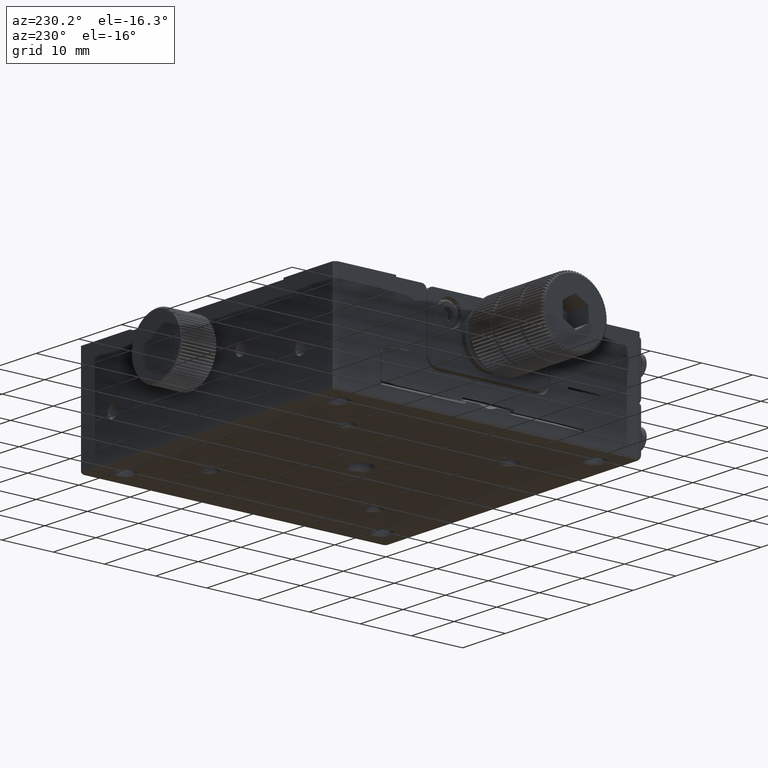
[diagram: clean part render]
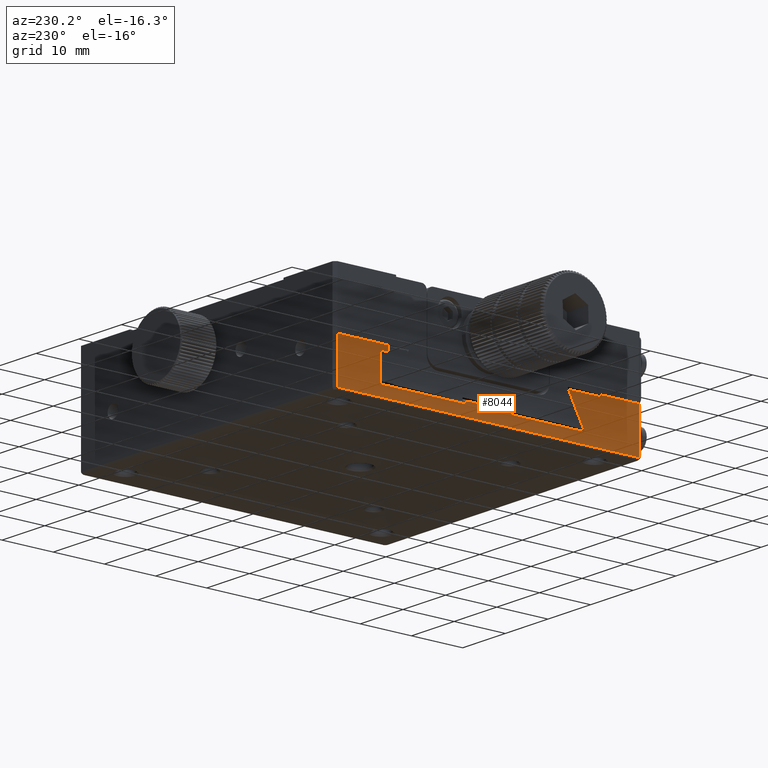
[diagram: same view with one face highlighted and labeled with its STEP entity id]
A machine part, auxiliary view. The second image highlights one B-rep face of the part: STEP entity #8044.
In plain terms, the highlighted planar face has unit normal (-1, 0, -0).
Its self-contained STEP definition (entity closure, byte-faithful):
#1287 = CARTESIAN_POINT ( 'NONE',  ( -30.00000000000004974, -29.99999999999998224, 68.41118330159217464 ) ) ;
#3218 = CARTESIAN_POINT ( 'NONE',  ( -30.00000000000004619, -18.84863156129987161, 62.35896086907427360 ) ) ;
#3400 = VERTEX_POINT ( 'NONE', #56900 ) ;
#3756 = AXIS2_PLACEMENT_3D ( 'NONE', #55884, #68641, #62620 ) ;
#3880 = CARTESIAN_POINT ( 'NONE',  ( -30.00000000000004619, -29.49999999999997868, 60.29999999999999716 ) ) ;
#4067 = EDGE_CURVE ( 'NONE', #25212, #7464, #9863, .T. ) ;
#4610 = B_SPLINE_CURVE_WITH_KNOTS ( 'NONE', 3,
 ( #58953, #14101, #47676, #70635, #70997, #24297, #47289, #7658, #42031, #64974 ),
 .UNSPECIFIED., .F., .F.,
 ( 4, 2, 2, 2, 4 ),
 ( -0.001803855641080095952, -0.0009018185509481879822, 2.185391837199873732E-07, 0.0009022556293156278485, 0.001804292719447535926 ),
 .UNSPECIFIED. ) ;
#4742 = CARTESIAN_POINT ( 'NONE',  ( -30.00000000000005329, -4.250000000000001776, 62.85795495142279776 ) ) ;
#4821 = DIRECTION ( 'NONE',  ( 0.000000000000000000, 1.000000000000000000, 0.000000000000000000 ) ) ;
#4844 = VERTEX_POINT ( 'NONE', #34919 ) ;
#5277 = CARTESIAN_POINT ( 'NONE',  ( -30.00000000000004263, 29.50000000000002842, 60.29999999999999716 ) ) ;
#5828 = VECTOR ( 'NONE', #47686, 1000.000000000000000 ) ;
#6255 = EDGE_CURVE ( 'NONE', #14005, #14031, #13396, .T. ) ;
#6266 = ORIENTED_EDGE ( 'NONE', *, *, #72024, .T. ) ;
#7018 = B_SPLINE_CURVE_WITH_KNOTS ( 'NONE', 3,
 ( #10415, #20258, #55665, #3218 ),
 .UNSPECIFIED., .F., .F.,
 ( 4, 4 ),
 ( 0.000000000000000000, 0.006834671148344017254 ),
 .UNSPECIFIED. ) ;
#7464 = VERTEX_POINT ( 'NONE', #28369 ) ;
#7658 = CARTESIAN_POINT ( 'NONE',  ( -30.00000000000002842, 1.188404621374754777, 62.60175307753633689 ) ) ;
#8044 = ADVANCED_FACE ( 'NONE', ( #9859 ), #32880, .T. ) ;
#8283 = VECTOR ( 'NONE', #39150, 1000.000000000000000 ) ;
#8309 = VERTEX_POINT ( 'NONE', #60295 ) ;
#8348 = LINE ( 'NONE', #31019, #44410 ) ;
#9679 = CARTESIAN_POINT ( 'NONE',  ( -30.00000000000004263, -4.617457868454971859, 62.35896086907426650 ) ) ;
#9815 = CARTESIAN_POINT ( 'NONE',  ( -30.00000000000006040, -29.49999999999997868, 84.99999999999998579 ) ) ;
#9859 = FACE_OUTER_BOUND ( 'NONE', #50284, .T. ) ;
#9863 = LINE ( 'NONE', #32887, #16503 ) ;
#10415 = CARTESIAN_POINT ( 'NONE',  ( -30.00000000000004974, -15.67320508075690455, 68.41118330159216043 ) ) ;
#10650 = VERTEX_POINT ( 'NONE', #5277 ) ;
#11246 = VERTEX_POINT ( 'NONE', #3880 ) ;
#11913 = CARTESIAN_POINT ( 'NONE',  ( -30.00000000000004974, 19.63334295424238363, 67.71905611070918951 ) ) ;
#12134 = CARTESIAN_POINT ( 'NONE',  ( -30.00000000000005329, 4.250000000000000000, 62.85795495142279776 ) ) ;
#12461 = EDGE_CURVE ( 'NONE', #56711, #45991, #42487, .T. ) ;
#12991 = LINE ( 'NONE', #17910, #5828 ) ;
#13106 = EDGE_CURVE ( 'NONE', #7464, #10650, #36104, .T. ) ;
#13396 = LINE ( 'NONE', #1287, #40000 ) ;
#13441 = EDGE_CURVE ( 'NONE', #8309, #34779, #12991, .T. ) ;
#14005 = VERTEX_POINT ( 'NONE', #65076 ) ;
#14031 = VERTEX_POINT ( 'NONE', #48141 ) ;
#14101 = CARTESIAN_POINT ( 'NONE',  ( -30.00000000000005684, -1.474826094125662124, 62.71373778912117558 ) ) ;
#14166 = EDGE_CURVE ( 'NONE', #14031, #50155, #7018, .T. ) ;
#14199 = ORIENTED_EDGE ( 'NONE', *, *, #42222, .T. ) ;
#14856 = DIRECTION ( 'NONE',  ( 0.000000000000000000, 1.000000000000000000, 0.000000000000000000 ) ) ;
#15038 = CARTESIAN_POINT ( 'NONE',  ( -30.00000000000004619, 19.49999999999999645, 68.73863542962540407 ) ) ;
#15248 = LINE ( 'NONE', #21670, #47205 ) ;
#15671 = CARTESIAN_POINT ( 'NONE',  ( -30.00000000000004619, -29.99999999999998224, 60.29999999999999716 ) ) ;
#15735 = EDGE_CURVE ( 'NONE', #60796, #3400, #15248, .T. ) ;
#15787 = CARTESIAN_POINT ( 'NONE',  ( -30.00000000000004974, -21.99999999999997513, -75.00000000484634199 ) ) ;
#16231 = CARTESIAN_POINT ( 'NONE',  ( -30.00000000000004974, -21.99999999999997868, 68.73863542962538986 ) ) ;
#16503 = VECTOR ( 'NONE', #62623, 1000.000000000000000 ) ;
#17177 = CARTESIAN_POINT ( 'NONE',  ( -30.00000000000005329, -1.743559577416249340, 62.85795495142279776 ) ) ;
#17910 = CARTESIAN_POINT ( 'NONE',  ( -30.00000000000008527, 30.00000000000002842, 67.64613810645261083 ) ) ;
#18136 = CARTESIAN_POINT ( 'NONE',  ( -30.00000000000004619, 19.49999999999999645, -6.765421556309545144E-14 ) ) ;
#18786 = CARTESIAN_POINT ( 'NONE',  ( -30.00000000000004974, -29.49999999999997868, 68.73863542962538986 ) ) ;
#19727 = DIRECTION ( 'NONE',  ( 0.000000000000000000, 1.000000000000000000, 0.000000000000000000 ) ) ;
#20258 = CARTESIAN_POINT ( 'NONE',  ( -30.00000000000004974, -16.73811358713173192, 66.39715104031704129 ) ) ;
#20650 = CARTESIAN_POINT ( 'NONE',  ( -30.00000000000003908, -4.747493718553307041, 62.35896086907427360 ) ) ;
#20762 = CARTESIAN_POINT ( 'NONE',  ( -30.00000000000005329, -4.250000000000001776, 62.85795495142279776 ) ) ;
#21110 = LINE ( 'NONE', #15787, #28328 ) ;
#21320 = VECTOR ( 'NONE', #55576, 1000.000000000000000 ) ;
#21523 = EDGE_CURVE ( 'NONE', #27926, #32047, #33172, .T. ) ;
#21670 = CARTESIAN_POINT ( 'NONE',  ( -30.00000000000004619, -29.99999999999998224, 62.85795495142279776 ) ) ;
#22492 = LINE ( 'NONE', #15671, #48621 ) ;
#24018 = VERTEX_POINT ( 'NONE', #17177 ) ;
#24297 = CARTESIAN_POINT ( 'NONE',  ( -30.00000000000002842, 0.3053818348310335384, 62.41446022413273909 ) ) ;
#24594 = CARTESIAN_POINT ( 'NONE',  ( -30.00000000000004619, -18.84863156129987161, 62.35896086907427360 ) ) ;
#24777 = LINE ( 'NONE', #36080, #27457 ) ;
#24974 = ORIENTED_EDGE ( 'NONE', *, *, #40851, .T. ) ;
#25212 = VERTEX_POINT ( 'NONE', #15038 ) ;
#25530 = DIRECTION ( 'NONE',  ( 6.522560269672792703E-16, -0.000000000000000000, -1.000000000000000000 ) ) ;
#27108 = CARTESIAN_POINT ( 'NONE',  ( -30.00000000000004619, -29.99999999999998224, 62.35896086907425939 ) ) ;
#27349 = ORIENTED_EDGE ( 'NONE', *, *, #6255, .T. ) ;
#27457 = VECTOR ( 'NONE', #54148, 1000.000000000000000 ) ;
#27745 = EDGE_CURVE ( 'NONE', #32047, #14005, #21110, .T. ) ;
#27926 = VERTEX_POINT ( 'NONE', #18786 ) ;
#28328 = VECTOR ( 'NONE', #38803, 1000.000000000000000 ) ;
#28369 = CARTESIAN_POINT ( 'NONE',  ( -30.00000000000004974, 29.50000000000001776, 68.73863542962540407 ) ) ;
#29505 = CARTESIAN_POINT ( 'NONE',  ( -30.00000000000004974, 4.261738886316542185, 62.72853376775830725 ) ) ;
#29528 = ORIENTED_EDGE ( 'NONE', *, *, #53854, .T. ) ;
#29632 = CARTESIAN_POINT ( 'NONE',  ( -30.00000000000004974, 19.56667625817610556, 67.79196529441307462 ) ) ;
#29862 = CARTESIAN_POINT ( 'NONE',  ( -30.00000000000003908, 4.314025390293651618, 62.60534236136659558 ) ) ;
#30149 = ORIENTED_EDGE ( 'NONE', *, *, #14166, .T. ) ;
#31019 = CARTESIAN_POINT ( 'NONE',  ( -30.00000000000004619, -29.99999999999998224, 62.85795495142279776 ) ) ;
#32047 = VERTEX_POINT ( 'NONE', #16231 ) ;
#32579 = CARTESIAN_POINT ( 'NONE',  ( -30.00000000000004619, -29.99999999999998224, 62.35896086907427360 ) ) ;
#32638 = ORIENTED_EDGE ( 'NONE', *, *, #40327, .T. ) ;
#32694 = CARTESIAN_POINT ( 'NONE',  ( -30.00000000000006040, -4.261717342678863041, 62.72877128629407650 ) ) ;
#32880 = PLANE ( 'NONE',  #3756 ) ;
#32887 = CARTESIAN_POINT ( 'NONE',  ( -30.00000000000004974, -29.99999999999998224, 68.73863542962540407 ) ) ;
#32896 = VERTEX_POINT ( 'NONE', #48412 ) ;
#33172 = LINE ( 'NONE', #44114, #35529 ) ;
#33553 = VECTOR ( 'NONE', #25530, 1000.000000000000000 ) ;
#34158 = VECTOR ( 'NONE', #64492, 1000.000000000000000 ) ;
#34779 = VERTEX_POINT ( 'NONE', #58314 ) ;
#34913 = CARTESIAN_POINT ( 'NONE',  ( -30.00000000000004619, 19.49999999999998224, 67.86486573123973187 ) ) ;
#34919 = CARTESIAN_POINT ( 'NONE',  ( -30.00000000000004619, 20.99999999999999645, 62.35896086907425229 ) ) ;
#35529 = VECTOR ( 'NONE', #4821, 1000.000000000000000 ) ;
#36080 = CARTESIAN_POINT ( 'NONE',  ( -30.00000000000006040, 20.99999999999999289, 84.99999999999998579 ) ) ;
#36104 = LINE ( 'NONE', #72222, #33553 ) ;
#38803 = DIRECTION ( 'NONE',  ( 0.000000000000000000, -0.000000000000000000, -1.000000000000000000 ) ) ;
#39150 = DIRECTION ( 'NONE',  ( 0.000000000000000000, 1.000000000000000000, 0.000000000000000000 ) ) ;
#39631 = DIRECTION ( 'NONE',  ( -6.522560269672792703E-16, 0.000000000000000000, 1.000000000000000000 ) ) ;
#40000 = VECTOR ( 'NONE', #54497, 1000.000000000000000 ) ;
#40327 = EDGE_CURVE ( 'NONE', #24018, #60796, #4610, .T. ) ;
#40539 = ORIENTED_EDGE ( 'NONE', *, *, #66698, .T. ) ;
#40851 = EDGE_CURVE ( 'NONE', #50155, #56711, #56332, .T. ) ;
#41731 = EDGE_CURVE ( 'NONE', #4844, #8309, #24777, .T. ) ;
#42031 = CARTESIAN_POINT ( 'NONE',  ( -30.00000000000008882, 1.474776222685397764, 62.71371102536431152 ) ) ;
#42222 = EDGE_CURVE ( 'NONE', #11246, #27926, #50197, .T. ) ;
#42296 = CARTESIAN_POINT ( 'NONE',  ( -30.00000000000004974, 4.492402671956252647, 62.41747840886570486 ) ) ;
#42487 = B_SPLINE_CURVE_WITH_KNOTS ( 'NONE', 3,
 ( #20650, #9679, #72638, #67361, #32694, #4742 ),
 .UNSPECIFIED., .F., .F.,
 ( 4, 2, 4 ),
 ( 1.734723475976807094E-18, 0.0003843035718108816405, 0.0007686071436217615464 ),
 .UNSPECIFIED. ) ;
#44114 = CARTESIAN_POINT ( 'NONE',  ( -30.00000000000004974, -29.99999999999998224, 68.73863542962540407 ) ) ;
#44397 = VERTEX_POINT ( 'NONE', #55378 ) ;
#44410 = VECTOR ( 'NONE', #19727, 1000.000000000000000 ) ;
#44841 = ORIENTED_EDGE ( 'NONE', *, *, #15735, .T. ) ;
#45991 = VERTEX_POINT ( 'NONE', #20762 ) ;
#46350 = ORIENTED_EDGE ( 'NONE', *, *, #13441, .T. ) ;
#47205 = VECTOR ( 'NONE', #14856, 1000.000000000000000 ) ;
#47289 = CARTESIAN_POINT ( 'NONE',  ( -30.00000000000003553, 0.6039122963963441393, 62.45272302388412555 ) ) ;
#47676 = CARTESIAN_POINT ( 'NONE',  ( -30.00000000000003553, -1.194448904053638127, 62.60383194014590202 ) ) ;
#47686 = DIRECTION ( 'NONE',  ( -0.000000000000000000, -1.000000000000000000, -0.000000000000000000 ) ) ;
#48141 = CARTESIAN_POINT ( 'NONE',  ( -30.00000000000004974, -15.67320508075690455, 68.41118330159216043 ) ) ;
#48412 = CARTESIAN_POINT ( 'NONE',  ( -30.00000000000004619, 4.747493718553311481, 62.35896086907425229 ) ) ;
#48621 = VECTOR ( 'NONE', #74437, 1000.000000000000000 ) ;
#50086 = EDGE_CURVE ( 'NONE', #3400, #32896, #60810, .T. ) ;
#50155 = VERTEX_POINT ( 'NONE', #24594 ) ;
#50197 = LINE ( 'NONE', #9815, #71957 ) ;
#50284 = EDGE_LOOP ( 'NONE', ( #50576, #64481, #46350, #40539, #29528, #59804, #64487, #66204, #14199, #67840, #58201, #27349, #30149, #24974, #66003, #6266, #32638, #44841, #68711 ) ) ;
#50576 = ORIENTED_EDGE ( 'NONE', *, *, #72543, .T. ) ;
#50807 = LINE ( 'NONE', #27108, #8283 ) ;
#52251 = CARTESIAN_POINT ( 'NONE',  ( -30.00000000000006750, 19.70000000000001705, 67.64613810645262504 ) ) ;
#52823 = LINE ( 'NONE', #18136, #34158 ) ;
#52848 = CARTESIAN_POINT ( 'NONE',  ( -30.00000000000004619, 4.617101994864514225, 62.35896086907425229 ) ) ;
#53854 = EDGE_CURVE ( 'NONE', #44397, #25212, #52823, .T. ) ;
#54148 = DIRECTION ( 'NONE',  ( -6.522560269672792703E-16, 0.000000000000000000, 1.000000000000000000 ) ) ;
#54497 = DIRECTION ( 'NONE',  ( 0.000000000000000000, 1.000000000000000000, 0.000000000000000000 ) ) ;
#54803 = B_SPLINE_CURVE_WITH_KNOTS ( 'NONE', 3,
 ( #52251, #11913, #29632, #34913 ),
 .UNSPECIFIED., .F., .F.,
 ( 4, 4 ),
 ( 1.734723475976807094E-17, 0.0002963811293672598181 ),
 .UNSPECIFIED. ) ;
#55378 = CARTESIAN_POINT ( 'NONE',  ( -30.00000000000004619, 19.49999999999998224, 67.86486573123973187 ) ) ;
#55576 = DIRECTION ( 'NONE',  ( 0.000000000000000000, 1.000000000000000000, 0.000000000000000000 ) ) ;
#55665 = CARTESIAN_POINT ( 'NONE',  ( -30.00000000000004619, -17.79712461907097776, 64.38002454437030053 ) ) ;
#55884 = CARTESIAN_POINT ( 'NONE',  ( -30.00000000000006040, -29.99999999999998224, 84.99999999999998579 ) ) ;
#56075 = EDGE_CURVE ( 'NONE', #10650, #11246, #22492, .T. ) ;
#56332 = LINE ( 'NONE', #32579, #21320 ) ;
#56711 = VERTEX_POINT ( 'NONE', #62910 ) ;
#56900 = CARTESIAN_POINT ( 'NONE',  ( -30.00000000000005329, 4.250000000000000000, 62.85795495142279776 ) ) ;
#58201 = ORIENTED_EDGE ( 'NONE', *, *, #27745, .T. ) ;
#58314 = CARTESIAN_POINT ( 'NONE',  ( -30.00000000000006750, 19.70000000000001705, 67.64613810645262504 ) ) ;
#58953 = CARTESIAN_POINT ( 'NONE',  ( -30.00000000000005329, -1.743559577416249340, 62.85795495142279776 ) ) ;
#59804 = ORIENTED_EDGE ( 'NONE', *, *, #4067, .T. ) ;
#60295 = CARTESIAN_POINT ( 'NONE',  ( -30.00000000000006750, 20.99999999999999645, 67.64613810645262504 ) ) ;
#60796 = VERTEX_POINT ( 'NONE', #66408 ) ;
#60810 = B_SPLINE_CURVE_WITH_KNOTS ( 'NONE', 3,
 ( #12134, #29505, #29862, #42296, #52848, #65251 ),
 .UNSPECIFIED., .F., .F.,
 ( 4, 2, 4 ),
 ( 0.000000000000000000, 0.0003845307934526977028, 0.0007690615869054102591 ),
 .UNSPECIFIED. ) ;
#62620 = DIRECTION ( 'NONE',  ( -6.522560269672792703E-16, 0.000000000000000000, 1.000000000000000000 ) ) ;
#62623 = DIRECTION ( 'NONE',  ( 0.000000000000000000, 1.000000000000000000, 0.000000000000000000 ) ) ;
#62910 = CARTESIAN_POINT ( 'NONE',  ( -30.00000000000003908, -4.747493718553307041, 62.35896086907427360 ) ) ;
#64481 = ORIENTED_EDGE ( 'NONE', *, *, #41731, .T. ) ;
#64487 = ORIENTED_EDGE ( 'NONE', *, *, #13106, .T. ) ;
#64492 = DIRECTION ( 'NONE',  ( 0.000000000000000000, -0.000000000000000000, 1.000000000000000000 ) ) ;
#64974 = CARTESIAN_POINT ( 'NONE',  ( -30.00000000000004619, 1.743559577416290640, 62.85795495142279776 ) ) ;
#65076 = CARTESIAN_POINT ( 'NONE',  ( -30.00000000000004974, -21.99999999999997513, 68.41118330159216043 ) ) ;
#65251 = CARTESIAN_POINT ( 'NONE',  ( -30.00000000000004619, 4.747493718553311481, 62.35896086907425229 ) ) ;
#66003 = ORIENTED_EDGE ( 'NONE', *, *, #12461, .T. ) ;
#66204 = ORIENTED_EDGE ( 'NONE', *, *, #56075, .T. ) ;
#66408 = CARTESIAN_POINT ( 'NONE',  ( -30.00000000000004619, 1.743559577416290640, 62.85795495142279776 ) ) ;
#66698 = EDGE_CURVE ( 'NONE', #34779, #44397, #54803, .T. ) ;
#67361 = CARTESIAN_POINT ( 'NONE',  ( -30.00000000000002842, -4.315231219117227290, 62.60380931133498450 ) ) ;
#67840 = ORIENTED_EDGE ( 'NONE', *, *, #21523, .T. ) ;
#68641 = DIRECTION ( 'NONE',  ( -1.000000000000000000, 0.000000000000000000, -6.522560269672792703E-16 ) ) ;
#68711 = ORIENTED_EDGE ( 'NONE', *, *, #50086, .T. ) ;
#70635 = CARTESIAN_POINT ( 'NONE',  ( -30.00000000000003553, -0.6100293465498685119, 62.45375605146589493 ) ) ;
#70997 = CARTESIAN_POINT ( 'NONE',  ( -30.00000000000003553, -0.3049382403367499328, 62.41442267598606009 ) ) ;
#71957 = VECTOR ( 'NONE', #39631, 1000.000000000000000 ) ;
#72024 = EDGE_CURVE ( 'NONE', #45991, #24018, #8348, .T. ) ;
#72222 = CARTESIAN_POINT ( 'NONE',  ( -30.00000000000006040, 29.50000000000001421, 84.99999999999998579 ) ) ;
#72543 = EDGE_CURVE ( 'NONE', #32896, #4844, #50807, .T. ) ;
#72638 = CARTESIAN_POINT ( 'NONE',  ( -30.00000000000003553, -4.492224610739333102, 62.41793056454475419 ) ) ;
#74437 = DIRECTION ( 'NONE',  ( -0.000000000000000000, -1.000000000000000000, -0.000000000000000000 ) ) ;